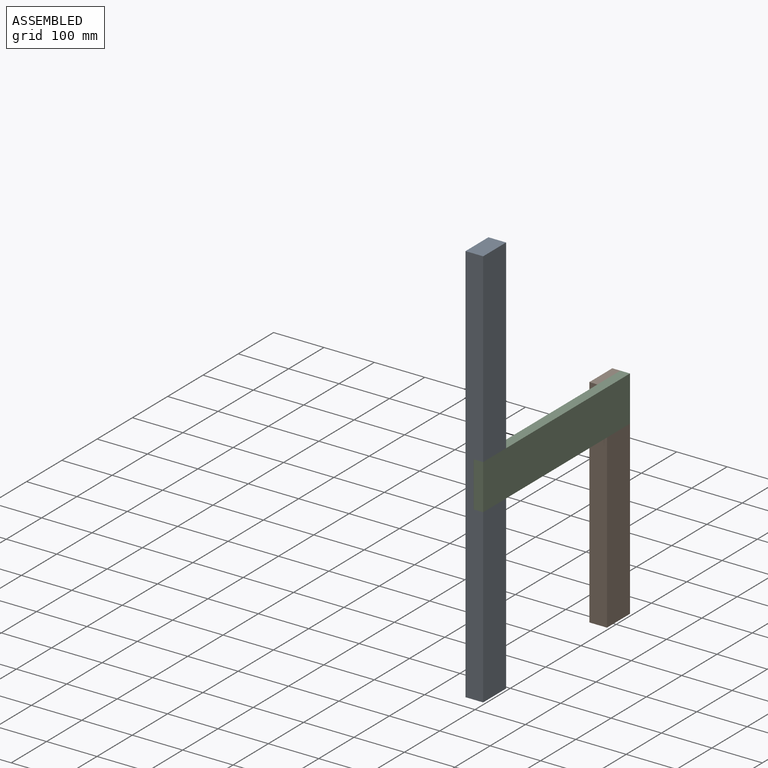
[diagram: assembled view]
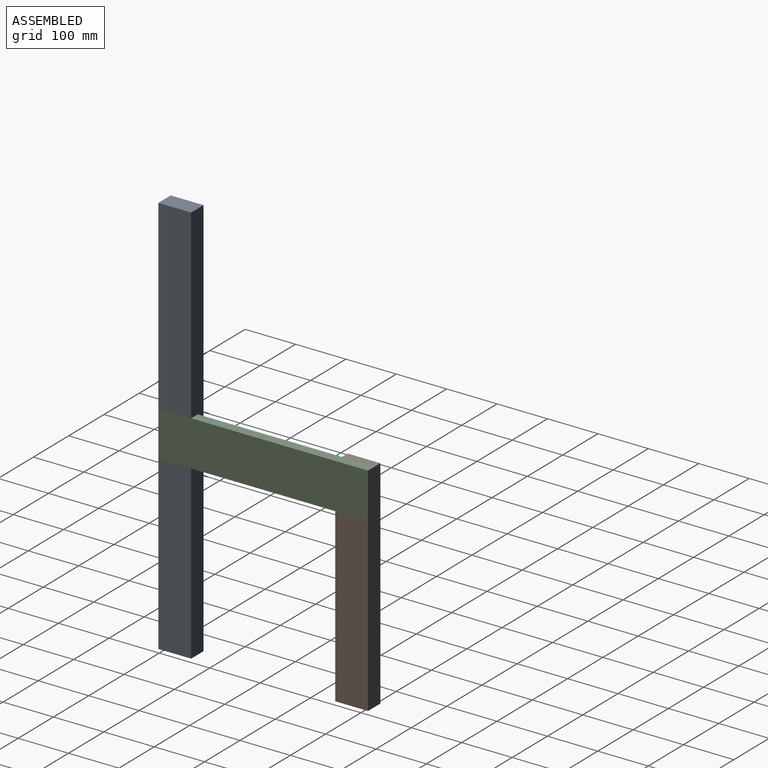
[diagram: assembled view, second angle]
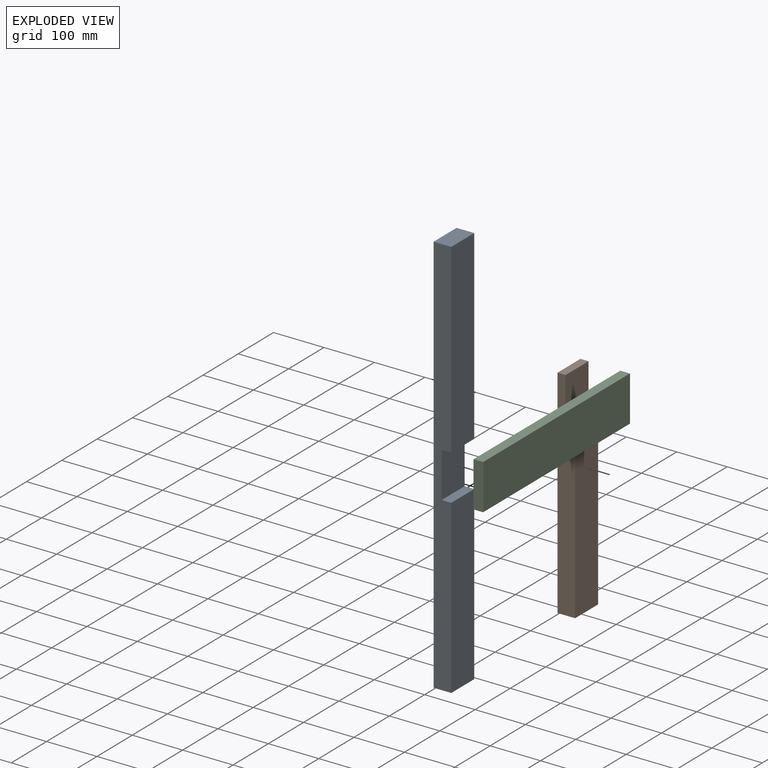
[diagram: exploded view]
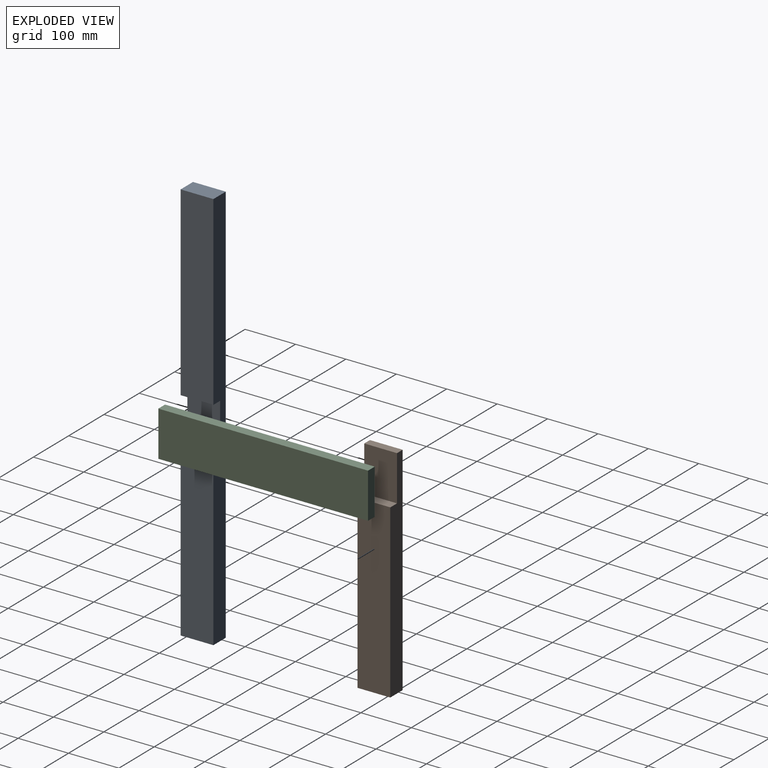
[diagram: exploded view, second angle]
ASSEMBLY  parts=3 mates=2
PART A: 10 faces, bbox 35x65x800 mm
  f0: plane 369x65mm, normal (1,0,0), area 23985mm2, adj f1,f3,f4,f8
  f1: plane 800x35mm, normal (0,-1,0), area 26290mm2, adj f0,f2,f4,f5,f6,f7,f8,f9
  f2: plane 65x35mm, normal (0,0,-1), area 2275mm2, adj f1,f3,f5,f6
  f3: plane 800x35mm, normal (0,1,0), area 26290mm2, adj f0,f2,f4,f5,f6,f7,f8,f9
  f4: plane 65x35mm, normal (0,0,1), area 2275mm2, adj f0,f1,f3,f6
  f5: plane 341x65mm, normal (1,0,0), area 22165mm2, adj f1,f2,f3,f7
  f6: plane 800x65mm, normal (-1,0,0), area 52000mm2, adj f1,f2,f3,f4
  f7: plane 65x19mm, normal (0,0,1), area 1235mm2, adj f1,f3,f5,f9
  f8: plane 65x19mm, normal (0,0,-1), area 1235mm2, adj f0,f1,f3,f9
  f9: plane 90x65mm, normal (1,0,0), area 5850mm2, adj f1,f3,f7,f8
PART B: 8 faces, bbox 35x65x431 mm
  f0: plane 65x16mm, normal (0,0,1), area 1040mm2, adj f1,f3,f5,f7
  f1: plane 431x35mm, normal (0,-1,0), area 13375mm2, adj f0,f2,f4,f5,f6,f7
  f2: plane 65x35mm, normal (0,0,-1), area 2275mm2, adj f1,f3,f4,f5
  f3: plane 431x35mm, normal (0,1,0), area 13375mm2, adj f0,f2,f4,f5,f6,f7
  f4: plane 341x65mm, normal (1,0,0), area 22165mm2, adj f1,f2,f3,f6
  f5: plane 431x65mm, normal (-1,0,0), area 28015mm2, adj f0,f1,f2,f3
  f6: plane 65x19mm, normal (0,0,1), area 1235mm2, adj f1,f3,f4,f7
  f7: plane 90x65mm, normal (1,0,0), area 5850mm2, adj f0,f1,f3,f6
PART C: 6 faces, bbox 19x416x90 mm
  f0: plane 416x19mm, normal (0,0,-1), area 7904mm2, adj f1,f3,f4,f5
  f1: plane 90x19mm, normal (0,1,0), area 1710mm2, adj f0,f2,f4,f5
  f2: plane 416x19mm, normal (0,0,1), area 7904mm2, adj f1,f3,f4,f5
  f3: plane 90x19mm, normal (0,-1,0), area 1710mm2, adj f0,f2,f4,f5
  f4: plane 416x90mm, normal (1,0,0), area 37440mm2, adj f0,f1,f2,f3
  f5: plane 416x90mm, normal (-1,0,0), area 37440mm2, adj f0,f1,f2,f3
PLACE A t=(-205.79,-461.13,-20.22)mm
PLACE B t=(-205.79,-110.13,-204.72)mm
PLACE C t=(-197.79,-285.63,-34.22)mm
MATE fastened B.f7 <-> C.f5  axis (1,0,0) through (-207.29,-77.63,10.78)mm
MATE fastened C.f5 <-> A.f9  axis (-1,0,0) through (-207.29,-493.63,-34.22)mm
